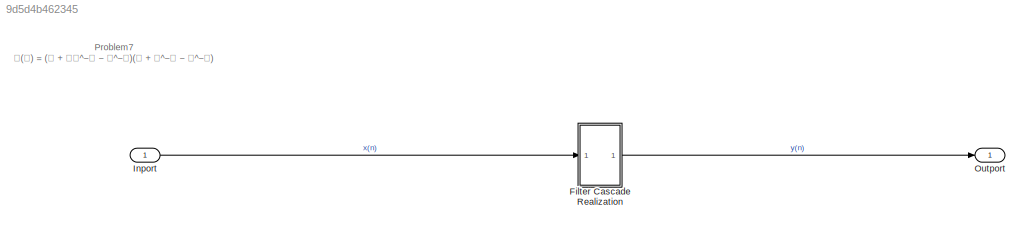
MODEL slx_9d5d4b462345
KIND model
CONFIG AbsTol = auto
CONFIG EnableMultiTasking = off
CONFIG FixedStep = auto
CONFIG MaxStep = auto
CONFIG MinStep = auto
CONFIG RelTol = 1e-3
CONFIG SampleTimeConstraint = Unconstrained
CONFIG SolverName = VariableStepAuto
CONFIG StartTime = 0.0
CONFIG StopTime = 10.0
BLOCK [ModelReference] Filter Cascade Realization
  ModelNameDialog = Subsystem
  ModelReferenceVersion = 1.2
  Ports = [1, 1]
BLOCK [Inport] Inport
BLOCK [Outport] Outport
ANNOTATION (root): Problem7 𝐇(𝐳) = (𝟏 + 𝟐𝐳^−𝟏 − 𝐳^−𝟐)(𝟏 + 𝐳^−𝟏 − 𝐳^−𝟐)
LINE Filter Cascade Realization:1 -> Outport:1
LINE Inport:1 -> Filter Cascade Realization:1
